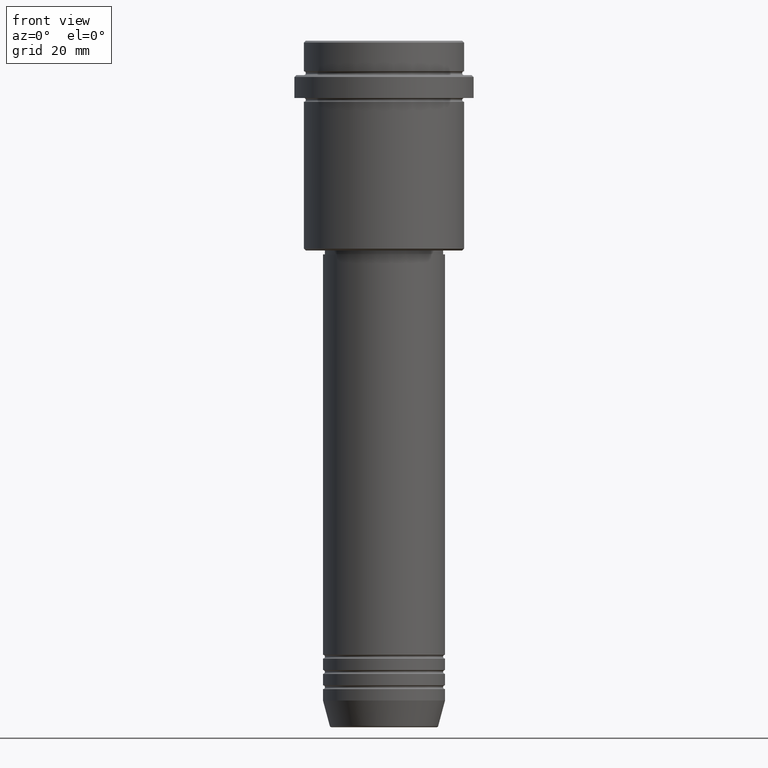
[diagram: clean part render]
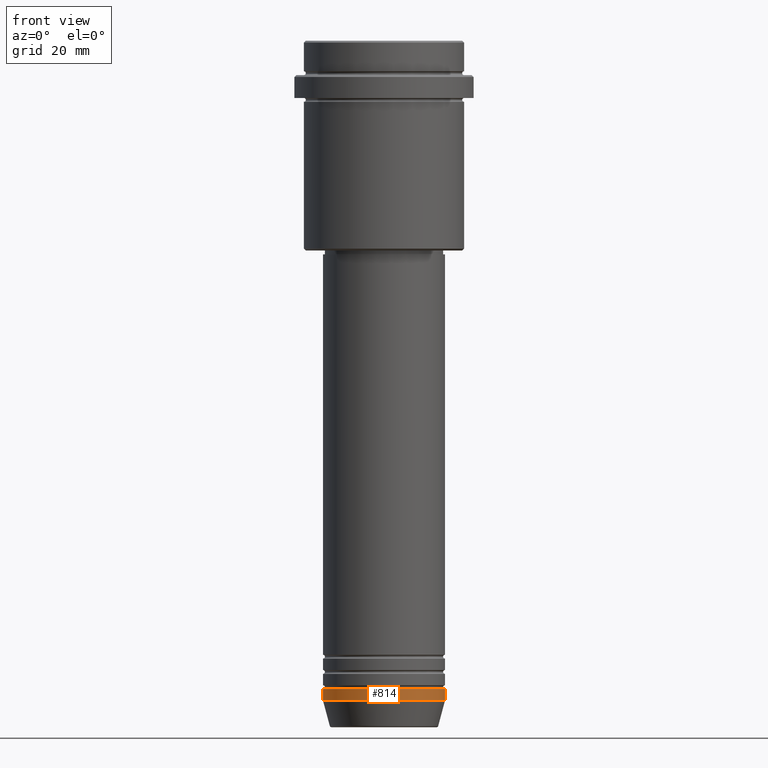
[diagram: same view with one face highlighted and labeled with its STEP entity id]
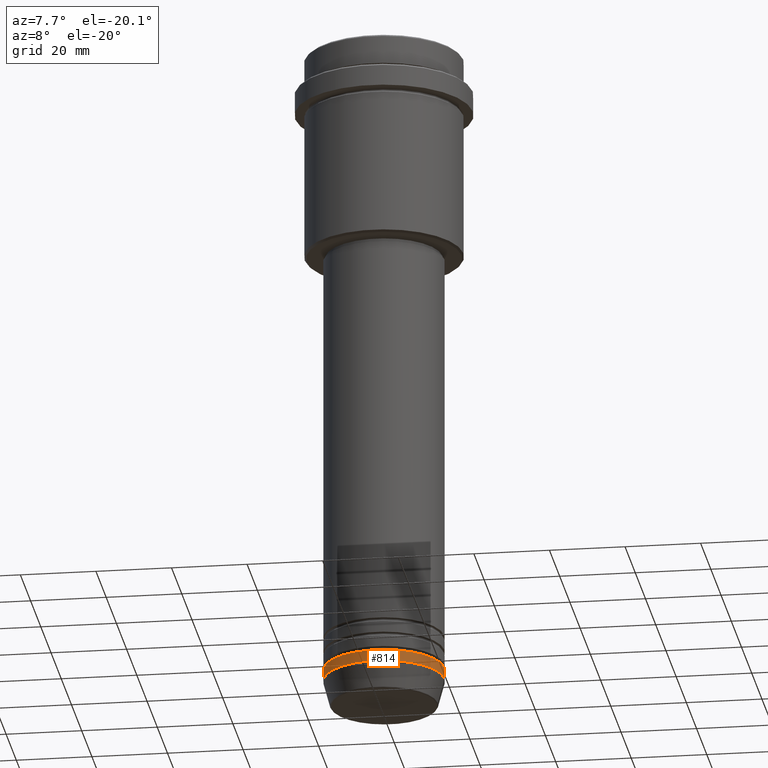
[diagram: same view with one face highlighted and labeled with its STEP entity id]
A machine part, front view. The second image highlights one B-rep face of the part: STEP entity #814.
A second angle (auxiliary view) of the same face is appended — the face is thin or edge-on in the first view.
In plain terms, the highlighted cylindrical surface (partial cylindrical patch) has radius 16 mm, axis along (-0, -0, 1).
Its self-contained STEP definition (entity closure, byte-faithful):
#42 = ORIENTED_EDGE ( 'NONE', *, *, #707, .T. ) ;
#120 = CIRCLE ( 'NONE', #1187, 16.00000000000000000 ) ;
#163 = CARTESIAN_POINT ( 'NONE',  ( 0.000000000000000000, 0.000000000000000000, -169.9999999999999716 ) ) ;
#187 = CYLINDRICAL_SURFACE ( 'NONE', #1123, 16.00000000000000000 ) ;
#204 = DIRECTION ( 'NONE',  ( -0.000000000000000000, -0.000000000000000000, 1.000000000000000000 ) ) ;
#205 = DIRECTION ( 'NONE',  ( -0.000000000000000000, -0.000000000000000000, 1.000000000000000000 ) ) ;
#218 = ORIENTED_EDGE ( 'NONE', *, *, #242, .F. ) ;
#230 = EDGE_CURVE ( 'NONE', #1142, #771, #1380, .T. ) ;
#242 = EDGE_CURVE ( 'NONE', #771, #341, #1053, .T. ) ;
#264 = VECTOR ( 'NONE', #279, 1000.000000000000000 ) ;
#279 = DIRECTION ( 'NONE',  ( -0.000000000000000000, -0.000000000000000000, 1.000000000000000000 ) ) ;
#288 = CARTESIAN_POINT ( 'NONE',  ( 16.00000000000000000, 0.000000000000000000, 0.000000000000000000 ) ) ;
#298 = DIRECTION ( 'NONE',  ( 1.000000000000000000, 0.000000000000000000, 0.000000000000000000 ) ) ;
#309 = CARTESIAN_POINT ( 'NONE',  ( 0.000000000000000000, 0.000000000000000000, 0.000000000000000000 ) ) ;
#320 = CARTESIAN_POINT ( 'NONE',  ( 0.000000000000000000, 0.000000000000000000, -173.0000000000000000 ) ) ;
#327 = LINE ( 'NONE', #288, #1279 ) ;
#328 = DIRECTION ( 'NONE',  ( 1.000000000000000000, 0.000000000000000000, 0.000000000000000000 ) ) ;
#341 = VERTEX_POINT ( 'NONE', #1146 ) ;
#393 = EDGE_LOOP ( 'NONE', ( #1027, #42, #749, #218 ) ) ;
#511 = DIRECTION ( 'NONE',  ( -0.000000000000000000, -0.000000000000000000, 1.000000000000000000 ) ) ;
#517 = AXIS2_PLACEMENT_3D ( 'NONE', #163, #1252, #298 ) ;
#618 = CARTESIAN_POINT ( 'NONE',  ( -16.00000000000000000, 1.959434878635765131E-15, 0.000000000000000000 ) ) ;
#707 = EDGE_CURVE ( 'NONE', #1142, #726, #120, .T. ) ;
#726 = VERTEX_POINT ( 'NONE', #957 ) ;
#743 = DIRECTION ( 'NONE',  ( 1.000000000000000000, 0.000000000000000000, 0.000000000000000000 ) ) ;
#749 = ORIENTED_EDGE ( 'NONE', *, *, #917, .T. ) ;
#771 = VERTEX_POINT ( 'NONE', #1143 ) ;
#814 = ADVANCED_FACE ( 'NONE', ( #1382 ), #187, .T. ) ;
#883 = CARTESIAN_POINT ( 'NONE',  ( -16.00000000000000000, 1.959434878635765131E-15, -173.0000000000000000 ) ) ;
#917 = EDGE_CURVE ( 'NONE', #726, #341, #327, .T. ) ;
#957 = CARTESIAN_POINT ( 'NONE',  ( 16.00000000000000000, 0.000000000000000000, -173.0000000000000000 ) ) ;
#1027 = ORIENTED_EDGE ( 'NONE', *, *, #230, .F. ) ;
#1053 = CIRCLE ( 'NONE', #517, 16.00000000000000000 ) ;
#1123 = AXIS2_PLACEMENT_3D ( 'NONE', #309, #205, #743 ) ;
#1142 = VERTEX_POINT ( 'NONE', #883 ) ;
#1143 = CARTESIAN_POINT ( 'NONE',  ( -16.00000000000000000, 1.959434878635765131E-15, -169.9999999999999716 ) ) ;
#1146 = CARTESIAN_POINT ( 'NONE',  ( 16.00000000000000000, 0.000000000000000000, -169.9999999999999716 ) ) ;
#1187 = AXIS2_PLACEMENT_3D ( 'NONE', #320, #204, #328 ) ;
#1252 = DIRECTION ( 'NONE',  ( -0.000000000000000000, -0.000000000000000000, 1.000000000000000000 ) ) ;
#1279 = VECTOR ( 'NONE', #511, 1000.000000000000000 ) ;
#1380 = LINE ( 'NONE', #618, #264 ) ;
#1382 = FACE_OUTER_BOUND ( 'NONE', #393, .T. ) ;